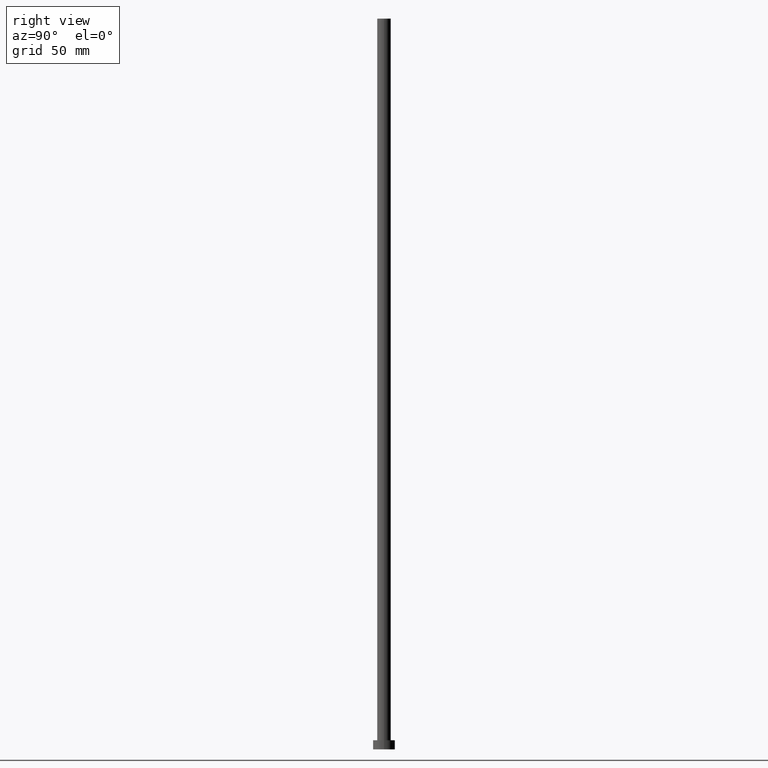
[diagram: clean part render]
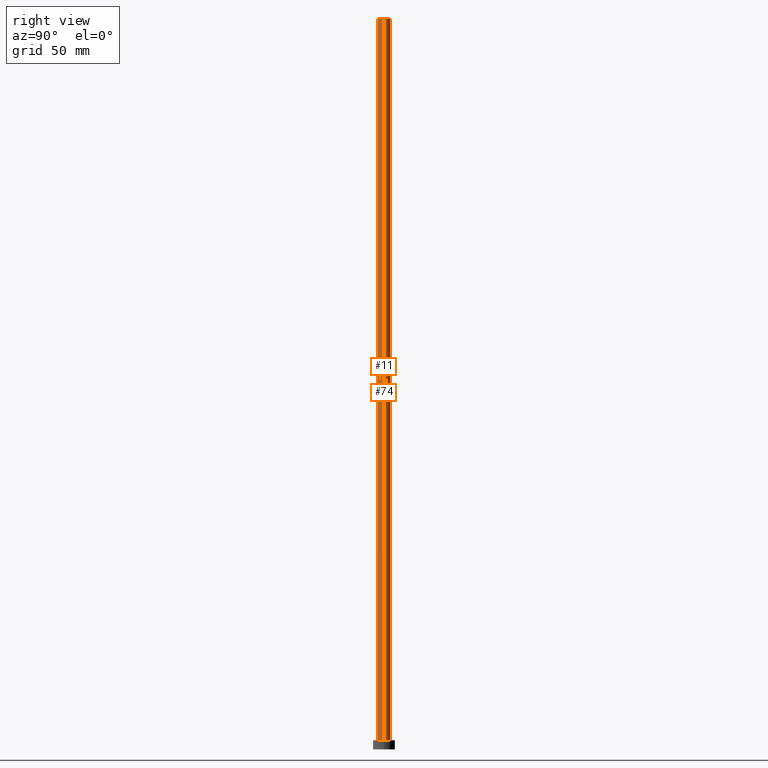
[diagram: same view with one multi-face feature highlighted, each face labeled with its STEP entity id]
A machine part, right view. The highlighted faces form ONE feature: a constant-radius fillet chain: 2 tangent blend faces with common blend radius 3.75 mm. The faces share edges in the B-rep.
Their STEP definitions:
[1] entity #11 (Cylinder):
#5 = DIRECTION ( 'NONE',  ( -0.000000000000000000, -0.000000000000000000, -1.000000000000000000 ) ) ;
#7 = ORIENTED_EDGE ( 'NONE', *, *, #106, .T. ) ;
#11 = ADVANCED_FACE ( 'NONE', ( #33 ), #117, .T. ) ;
#16 = DIRECTION ( 'NONE',  ( 0.000000000000000000, 0.000000000000000000, 1.000000000000000000 ) ) ;
#33 = FACE_OUTER_BOUND ( 'NONE', #154, .T. ) ;
#35 = DIRECTION ( 'NONE',  ( -1.000000000000000000, 0.000000000000000000, 0.000000000000000000 ) ) ;
#40 = AXIS2_PLACEMENT_3D ( 'NONE', #136, #219, #35 ) ;
#43 = EDGE_CURVE ( 'NONE', #193, #169, #207, .T. ) ;
#45 = DIRECTION ( 'NONE',  ( -0.000000000000000000, -0.000000000000000000, -1.000000000000000000 ) ) ;
#51 = CARTESIAN_POINT ( 'NONE',  ( 0.000000000000000000, 0.000000000000000000, 5.000000000000000000 ) ) ;
#52 = CARTESIAN_POINT ( 'NONE',  ( 3.750000000000000000, 4.592425496802572986E-16, 400.0000000000000000 ) ) ;
#75 = ORIENTED_EDGE ( 'NONE', *, *, #151, .T. ) ;
#86 = DIRECTION ( 'NONE',  ( 1.000000000000000000, 0.000000000000000000, 0.000000000000000000 ) ) ;
#87 = CARTESIAN_POINT ( 'NONE',  ( -3.750000000000000000, 0.000000000000000000, 400.0000000000000000 ) ) ;
#90 = DIRECTION ( 'NONE',  ( 0.000000000000000000, 0.000000000000000000, 1.000000000000000000 ) ) ;
#94 = CARTESIAN_POINT ( 'NONE',  ( -3.750000000000000000, 0.000000000000000000, 5.000000000000000000 ) ) ;
#106 = EDGE_CURVE ( 'NONE', #252, #169, #237, .T. ) ;
#111 = ORIENTED_EDGE ( 'NONE', *, *, #43, .F. ) ;
#117 = CYLINDRICAL_SURFACE ( 'NONE', #40, 3.750000000000000000 ) ;
#119 = CIRCLE ( 'NONE', #240, 3.750000000000000000 ) ;
#130 = AXIS2_PLACEMENT_3D ( 'NONE', #51, #16, #214 ) ;
#136 = CARTESIAN_POINT ( 'NONE',  ( 0.000000000000000000, 0.000000000000000000, 400.0000000000000000 ) ) ;
#151 = EDGE_CURVE ( 'NONE', #217, #252, #183, .T. ) ;
#154 = EDGE_LOOP ( 'NONE', ( #111, #233, #75, #7 ) ) ;
#169 = VERTEX_POINT ( 'NONE', #246 ) ;
#183 = LINE ( 'NONE', #87, #218 ) ;
#193 = VERTEX_POINT ( 'NONE', #52 ) ;
#207 = LINE ( 'NONE', #211, #254 ) ;
#208 = CARTESIAN_POINT ( 'NONE',  ( 0.000000000000000000, 0.000000000000000000, 400.0000000000000000 ) ) ;
#211 = CARTESIAN_POINT ( 'NONE',  ( 3.750000000000000000, 4.592425496802572986E-16, 400.0000000000000000 ) ) ;
#214 = DIRECTION ( 'NONE',  ( 1.000000000000000000, 0.000000000000000000, 0.000000000000000000 ) ) ;
#217 = VERTEX_POINT ( 'NONE', #249 ) ;
#218 = VECTOR ( 'NONE', #45, 1000.000000000000000 ) ;
#219 = DIRECTION ( 'NONE',  ( -0.000000000000000000, -0.000000000000000000, -1.000000000000000000 ) ) ;
#229 = EDGE_CURVE ( 'NONE', #217, #193, #119, .T. ) ;
#233 = ORIENTED_EDGE ( 'NONE', *, *, #229, .F. ) ;
#237 = CIRCLE ( 'NONE', #130, 3.750000000000000000 ) ;
#240 = AXIS2_PLACEMENT_3D ( 'NONE', #208, #90, #86 ) ;
#246 = CARTESIAN_POINT ( 'NONE',  ( 3.750000000000000000, 4.592425496802572986E-16, 5.000000000000000000 ) ) ;
#249 = CARTESIAN_POINT ( 'NONE',  ( -3.750000000000000000, 0.000000000000000000, 400.0000000000000000 ) ) ;
#252 = VERTEX_POINT ( 'NONE', #94 ) ;
#254 = VECTOR ( 'NONE', #5, 1000.000000000000000 ) ;
[2] entity #74 (Cylinder):
#5 = DIRECTION ( 'NONE',  ( -0.000000000000000000, -0.000000000000000000, -1.000000000000000000 ) ) ;
#12 = DIRECTION ( 'NONE',  ( 0.000000000000000000, 0.000000000000000000, 1.000000000000000000 ) ) ;
#15 = CYLINDRICAL_SURFACE ( 'NONE', #157, 3.750000000000000000 ) ;
#20 = AXIS2_PLACEMENT_3D ( 'NONE', #55, #135, #177 ) ;
#36 = DIRECTION ( 'NONE',  ( -0.000000000000000000, -0.000000000000000000, -1.000000000000000000 ) ) ;
#43 = EDGE_CURVE ( 'NONE', #193, #169, #207, .T. ) ;
#45 = DIRECTION ( 'NONE',  ( -0.000000000000000000, -0.000000000000000000, -1.000000000000000000 ) ) ;
#52 = CARTESIAN_POINT ( 'NONE',  ( 3.750000000000000000, 4.592425496802572986E-16, 400.0000000000000000 ) ) ;
#53 = CIRCLE ( 'NONE', #202, 3.750000000000000000 ) ;
#55 = CARTESIAN_POINT ( 'NONE',  ( 0.000000000000000000, 0.000000000000000000, 5.000000000000000000 ) ) ;
#70 = ORIENTED_EDGE ( 'NONE', *, *, #100, .F. ) ;
#74 = ADVANCED_FACE ( 'NONE', ( #159 ), #15, .T. ) ;
#77 = EDGE_CURVE ( 'NONE', #169, #252, #121, .T. ) ;
#87 = CARTESIAN_POINT ( 'NONE',  ( -3.750000000000000000, 0.000000000000000000, 400.0000000000000000 ) ) ;
#94 = CARTESIAN_POINT ( 'NONE',  ( -3.750000000000000000, 0.000000000000000000, 5.000000000000000000 ) ) ;
#100 = EDGE_CURVE ( 'NONE', #193, #217, #53, .T. ) ;
#112 = CARTESIAN_POINT ( 'NONE',  ( 0.000000000000000000, 0.000000000000000000, 400.0000000000000000 ) ) ;
#118 = CARTESIAN_POINT ( 'NONE',  ( 0.000000000000000000, 0.000000000000000000, 400.0000000000000000 ) ) ;
#121 = CIRCLE ( 'NONE', #20, 3.750000000000000000 ) ;
#135 = DIRECTION ( 'NONE',  ( 0.000000000000000000, 0.000000000000000000, 1.000000000000000000 ) ) ;
#145 = DIRECTION ( 'NONE',  ( 1.000000000000000000, 0.000000000000000000, 0.000000000000000000 ) ) ;
#151 = EDGE_CURVE ( 'NONE', #217, #252, #183, .T. ) ;
#157 = AXIS2_PLACEMENT_3D ( 'NONE', #118, #36, #175 ) ;
#159 = FACE_OUTER_BOUND ( 'NONE', #221, .T. ) ;
#169 = VERTEX_POINT ( 'NONE', #246 ) ;
#174 = ORIENTED_EDGE ( 'NONE', *, *, #151, .F. ) ;
#175 = DIRECTION ( 'NONE',  ( -1.000000000000000000, 0.000000000000000000, 0.000000000000000000 ) ) ;
#177 = DIRECTION ( 'NONE',  ( 1.000000000000000000, 0.000000000000000000, 0.000000000000000000 ) ) ;
#179 = ORIENTED_EDGE ( 'NONE', *, *, #43, .T. ) ;
#183 = LINE ( 'NONE', #87, #218 ) ;
#193 = VERTEX_POINT ( 'NONE', #52 ) ;
#202 = AXIS2_PLACEMENT_3D ( 'NONE', #112, #12, #145 ) ;
#207 = LINE ( 'NONE', #211, #254 ) ;
#211 = CARTESIAN_POINT ( 'NONE',  ( 3.750000000000000000, 4.592425496802572986E-16, 400.0000000000000000 ) ) ;
#217 = VERTEX_POINT ( 'NONE', #249 ) ;
#218 = VECTOR ( 'NONE', #45, 1000.000000000000000 ) ;
#221 = EDGE_LOOP ( 'NONE', ( #70, #179, #236, #174 ) ) ;
#236 = ORIENTED_EDGE ( 'NONE', *, *, #77, .T. ) ;
#246 = CARTESIAN_POINT ( 'NONE',  ( 3.750000000000000000, 4.592425496802572986E-16, 5.000000000000000000 ) ) ;
#249 = CARTESIAN_POINT ( 'NONE',  ( -3.750000000000000000, 0.000000000000000000, 400.0000000000000000 ) ) ;
#252 = VERTEX_POINT ( 'NONE', #94 ) ;
#254 = VECTOR ( 'NONE', #5, 1000.000000000000000 ) ;